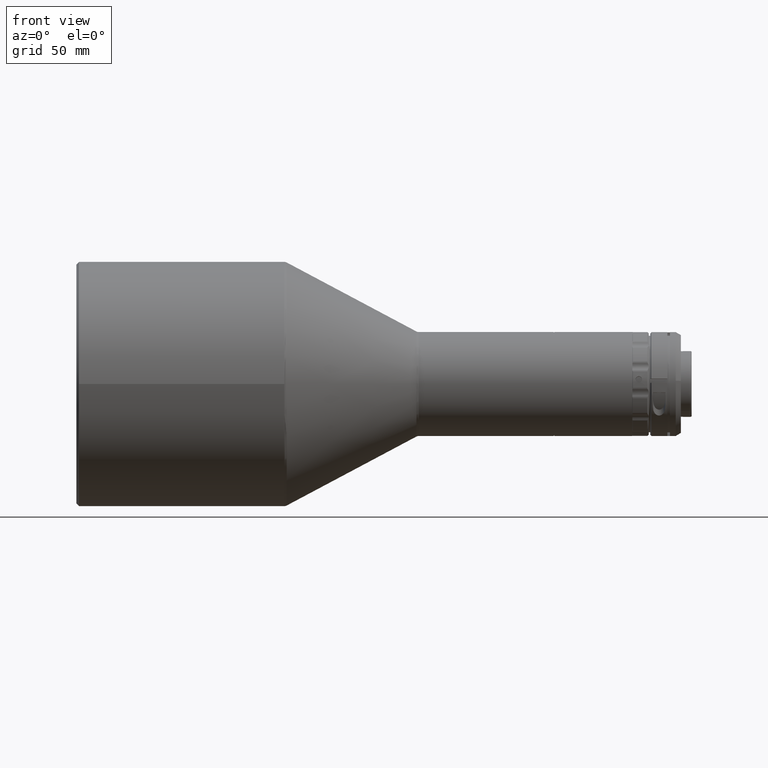
[diagram: clean part render]
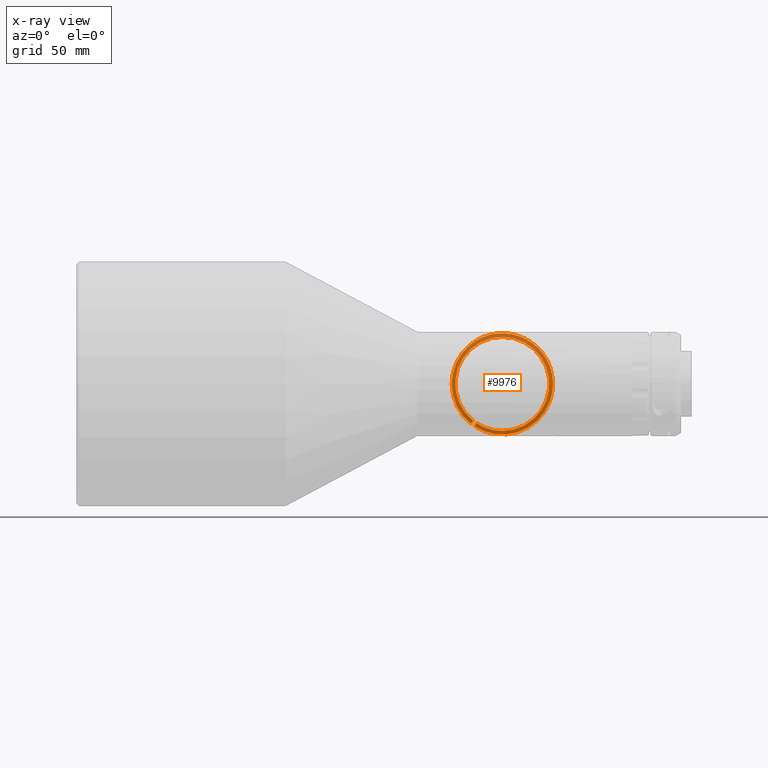
[diagram: x-ray — body ghosted, one internal face saturated and labeled with its STEP entity id]
A machine part, front view, then the same camera in x-ray: the body is ghosted and one INTERNAL B-rep face — a face not visible from any outside direction — is saturated and labeled: STEP entity #9976.
In plain terms, the highlighted planar face has unit normal (0, 1, 0).
Its self-contained STEP definition (entity closure, byte-faithful):
#70 = DIRECTION ( 'NONE',  ( -0.5864805045990307800, 0.0000000000000000000, -0.8099633434454093200 ) ) ;
#101 = VERTEX_POINT ( 'NONE', #3163 ) ;
#583 = CIRCLE ( 'NONE', #11445, 19.50000000000000700 ) ;
#651 = DIRECTION ( 'NONE',  ( -0.5864805045990308900, 0.0000000000000000000, -0.8099633434454093200 ) ) ;
#749 = CARTESIAN_POINT ( 'NONE',  ( 151.6138423446918800, 56.94999999999999600, 15.13454680245852800 ) ) ;
#1133 = DIRECTION ( 'NONE',  ( 0.0000000000000000000, 1.000000000000000000, 0.0000000000000000000 ) ) ;
#1213 = DIRECTION ( 'NONE',  ( 0.0000000000000000000, 1.000000000000000000, 0.0000000000000000000 ) ) ;
#1226 = CARTESIAN_POINT ( 'NONE',  ( 163.9100000000000000, 56.94999999999999600, 0.0000000000000000000 ) ) ;
#1263 = CARTESIAN_POINT ( 'NONE',  ( 163.9100000000000000, 56.94999999999999600, 18.08679845993491100 ) ) ;
#1305 = EDGE_CURVE ( 'NONE', #1441, #13076, #12113, .T. ) ;
#1423 = DIRECTION ( 'NONE',  ( 0.0000000000000000000, 1.000000000000000000, 0.0000000000000000000 ) ) ;
#1441 = VERTEX_POINT ( 'NONE', #10881 ) ;
#1790 = FACE_OUTER_BOUND ( 'NONE', #2478, .T. ) ;
#1821 = CARTESIAN_POINT ( 'NONE',  ( 163.9100000000000000, 56.94999999999999600, 0.0000000000000000000 ) ) ;
#2005 = AXIS2_PLACEMENT_3D ( 'NONE', #6050, #9369, #5061 ) ;
#2007 = CIRCLE ( 'NONE', #7000, 18.08679845993491100 ) ;
#2139 = CIRCLE ( 'NONE', #2005, 19.50000000000000400 ) ;
#2462 = ORIENTED_EDGE ( 'NONE', *, *, #5412, .T. ) ;
#2478 = EDGE_LOOP ( 'NONE', ( #8864, #13947, #13718, #2462, #14333, #9048, #4776, #7026, #4804, #13105, #4122, #3037, #8165 ) ) ;
#2488 = CARTESIAN_POINT ( 'NONE',  ( 175.3463698429205800, 56.94999999999999600, 15.79428519483985100 ) ) ;
#2854 = VERTEX_POINT ( 'NONE', #4536 ) ;
#2934 = DIRECTION ( 'NONE',  ( 0.0000000000000000000, 1.000000000000000000, 0.0000000000000000000 ) ) ;
#2974 = DIRECTION ( 'NONE',  ( 0.0000000000000000000, 1.000000000000000000, 0.0000000000000000000 ) ) ;
#3037 = ORIENTED_EDGE ( 'NONE', *, *, #10727, .F. ) ;
#3163 = CARTESIAN_POINT ( 'NONE',  ( 153.1312291761945200, 56.94999999899128100, -16.25017229104170400 ) ) ;
#3244 = VERTEX_POINT ( 'NONE', #1263 ) ;
#3278 = VERTEX_POINT ( 'NONE', #2488 ) ;
#3539 = LINE ( 'NONE', #12856, #7544 ) ;
#3609 = CARTESIAN_POINT ( 'NONE',  ( 163.9100000000000000, 56.94999999999999600, 0.0000000000000000000 ) ) ;
#3874 = CARTESIAN_POINT ( 'NONE',  ( 163.9100000000000000, 56.94999999999999600, 0.0000000000000000000 ) ) ;
#3884 = DIRECTION ( 'NONE',  ( 0.0000000000000000000, 1.000000000000000000, 0.0000000000000000000 ) ) ;
#4084 = AXIS2_PLACEMENT_3D ( 'NONE', #4515, #1213, #11150 ) ;
#4122 = ORIENTED_EDGE ( 'NONE', *, *, #1305, .F. ) ;
#4515 = CARTESIAN_POINT ( 'NONE',  ( 163.9100000000000000, 56.94999999999999600, 0.0000000000000000000 ) ) ;
#4536 = CARTESIAN_POINT ( 'NONE',  ( 183.3602812413177500, 56.95000000000435800, 1.391603260205095200 ) ) ;
#4589 = CARTESIAN_POINT ( 'NONE',  ( 163.9100000000000000, 56.94999999999999600, 0.0000000000000000000 ) ) ;
#4776 = ORIENTED_EDGE ( 'NONE', *, *, #9593, .F. ) ;
#4804 = ORIENTED_EDGE ( 'NONE', *, *, #5576, .F. ) ;
#5061 = DIRECTION ( 'NONE',  ( -0.5864805045990308900, 0.0000000000000000000, -0.8099633434454093200 ) ) ;
#5127 = DIRECTION ( 'NONE',  ( -0.5864805045990307800, 0.0000000000000000000, -0.8099633434454093200 ) ) ;
#5412 = EDGE_CURVE ( 'NONE', #11306, #6008, #9221, .T. ) ;
#5425 = CIRCLE ( 'NONE', #6544, 19.50000000000000400 ) ;
#5576 = EDGE_CURVE ( 'NONE', #3278, #6467, #11126, .T. ) ;
#5792 = CARTESIAN_POINT ( 'NONE',  ( 152.6648560171681500, 56.94999999999999600, -14.16612209942031300 ) ) ;
#5830 = AXIS2_PLACEMENT_3D ( 'NONE', #1226, #12364, #70 ) ;
#6008 = VERTEX_POINT ( 'NONE', #7422 ) ;
#6050 = CARTESIAN_POINT ( 'NONE',  ( 163.9100000000000000, 56.94999999999999600, 0.0000000000000000000 ) ) ;
#6231 = DIRECTION ( 'NONE',  ( -0.5864805045990308900, 0.0000000000000000000, -0.8099633434454093200 ) ) ;
#6467 = VERTEX_POINT ( 'NONE', #13028 ) ;
#6544 = AXIS2_PLACEMENT_3D ( 'NONE', #4589, #1423, #11315 ) ;
#6668 = AXIS2_PLACEMENT_3D ( 'NONE', #1821, #2934, #9545 ) ;
#6706 = AXIS2_PLACEMENT_3D ( 'NONE', #8448, #10781, #6231 ) ;
#6764 = PLANE ( 'NONE',  #12374 ) ;
#6781 = VERTEX_POINT ( 'NONE', #749 ) ;
#6827 = EDGE_CURVE ( 'NONE', #7640, #6781, #8686, .T. ) ;
#6832 = CIRCLE ( 'NONE', #10729, 18.08679845993491100 ) ;
#7000 = AXIS2_PLACEMENT_3D ( 'NONE', #3874, #9381, #8235 ) ;
#7026 = ORIENTED_EDGE ( 'NONE', *, *, #14053, .F. ) ;
#7185 = DIRECTION ( 'NONE',  ( 0.0000000000000000000, 1.000000000000000000, 0.0000000000000000000 ) ) ;
#7330 = CARTESIAN_POINT ( 'NONE',  ( 182.1260582996450800, 56.94999999999999600, -6.958823178090601600 ) ) ;
#7422 = CARTESIAN_POINT ( 'NONE',  ( 153.9607973516124000, 56.94999999949563800, -15.10449089481736200 ) ) ;
#7436 = CARTESIAN_POINT ( 'NONE',  ( 163.9100000000000000, 56.94999999999999600, 0.0000000000000000000 ) ) ;
#7544 = VECTOR ( 'NONE', #13873, 1000.000000000000200 ) ;
#7640 = VERTEX_POINT ( 'NONE', #12739 ) ;
#7793 = AXIS2_PLACEMENT_3D ( 'NONE', #7436, #2974, #12904 ) ;
#7872 = VECTOR ( 'NONE', #10928, 1000.000000000000200 ) ;
#8165 = ORIENTED_EDGE ( 'NONE', *, *, #6827, .F. ) ;
#8235 = DIRECTION ( 'NONE',  ( 0.0000000000000000000, 0.0000000000000000000, 1.000000000000000000 ) ) ;
#8448 = CARTESIAN_POINT ( 'NONE',  ( 163.9100000000000000, 56.94999999999999600, 0.0000000000000000000 ) ) ;
#8686 = CIRCLE ( 'NONE', #6706, 19.50000000000000400 ) ;
#8864 = ORIENTED_EDGE ( 'NONE', *, *, #11748, .F. ) ;
#8875 = DIRECTION ( 'NONE',  ( -0.5864805045990305600, 0.0000000000000000000, -0.8099633434454094300 ) ) ;
#8945 = EDGE_CURVE ( 'NONE', #12321, #3244, #2007, .T. ) ;
#8959 = EDGE_CURVE ( 'NONE', #12578, #101, #583, .T. ) ;
#9048 = ORIENTED_EDGE ( 'NONE', *, *, #8959, .F. ) ;
#9221 = CIRCLE ( 'NONE', #7793, 18.08679845993491100 ) ;
#9369 = DIRECTION ( 'NONE',  ( 0.0000000000000000000, 1.000000000000000000, 0.0000000000000000000 ) ) ;
#9381 = DIRECTION ( 'NONE',  ( 0.0000000000000000000, 1.000000000000000000, 0.0000000000000000000 ) ) ;
#9545 = DIRECTION ( 'NONE',  ( -0.5864805045990308900, 0.0000000000000000000, -0.8099633434454093200 ) ) ;
#9593 = EDGE_CURVE ( 'NONE', #2854, #12578, #5425, .T. ) ;
#9623 = CARTESIAN_POINT ( 'NONE',  ( 167.5999176894796400, 56.94999999999999600, 19.14770240642112900 ) ) ;
#9798 = EDGE_CURVE ( 'NONE', #101, #6008, #13925, .T. ) ;
#9976 = ADVANCED_FACE ( 'NONE', ( #1790 ), #6764, .F. ) ;
#9997 = CARTESIAN_POINT ( 'NONE',  ( 191.4673651272198400, 56.94999999999999600, 4.410130557975224800 ) ) ;
#10727 = EDGE_CURVE ( 'NONE', #6781, #1441, #2139, .T. ) ;
#10729 = AXIS2_PLACEMENT_3D ( 'NONE', #12602, #3884, #13679 ) ;
#10781 = DIRECTION ( 'NONE',  ( 0.0000000000000000000, 1.000000000000000000, 0.0000000000000000000 ) ) ;
#10881 = CARTESIAN_POINT ( 'NONE',  ( 159.1620324284413900, 56.94999999999999600, 18.91313839476219300 ) ) ;
#10928 = DIRECTION ( 'NONE',  ( 0.5864805045990305600, 0.0000000000000000000, 0.8099633434454095400 ) ) ;
#11126 = CIRCLE ( 'NONE', #4084, 19.50000000000000700 ) ;
#11150 = DIRECTION ( 'NONE',  ( -0.5864805045990307800, 0.0000000000000000000, -0.8099633434454093200 ) ) ;
#11306 = VERTEX_POINT ( 'NONE', #12823 ) ;
#11315 = DIRECTION ( 'NONE',  ( -0.5864805045990308900, 0.0000000000000000000, -0.8099633434454093200 ) ) ;
#11445 = AXIS2_PLACEMENT_3D ( 'NONE', #13806, #7185, #5127 ) ;
#11748 = EDGE_CURVE ( 'NONE', #12321, #7640, #3539, .T. ) ;
#12113 = CIRCLE ( 'NONE', #6668, 19.50000000000000400 ) ;
#12321 = VERTEX_POINT ( 'NONE', #5792 ) ;
#12364 = DIRECTION ( 'NONE',  ( 0.0000000000000000000, 1.000000000000000000, 0.0000000000000000000 ) ) ;
#12373 = EDGE_CURVE ( 'NONE', #3244, #11306, #6832, .T. ) ;
#12374 = AXIS2_PLACEMENT_3D ( 'NONE', #9997, #1133, #8875 ) ;
#12578 = VERTEX_POINT ( 'NONE', #7330 ) ;
#12602 = CARTESIAN_POINT ( 'NONE',  ( 163.9100000000000000, 56.94999999999999600, 0.0000000000000000000 ) ) ;
#12739 = CARTESIAN_POINT ( 'NONE',  ( 151.8352878422451500, 56.94999999899846400, -15.31180349496123800 ) ) ;
#12813 = DIRECTION ( 'NONE',  ( 0.0000000000000000000, 1.000000000000000000, 0.0000000000000000000 ) ) ;
#12823 = CARTESIAN_POINT ( 'NONE',  ( 163.9100000000000000, 56.94999999999999600, -18.08679845993491100 ) ) ;
#12856 = CARTESIAN_POINT ( 'NONE',  ( 163.2668435150043000, 56.94999999999999600, 0.4758330441436775500 ) ) ;
#12904 = DIRECTION ( 'NONE',  ( 0.0000000000000000000, 0.0000000000000000000, 1.000000000000000000 ) ) ;
#13024 = CIRCLE ( 'NONE', #5830, 19.50000000000000700 ) ;
#13028 = CARTESIAN_POINT ( 'NONE',  ( 180.9498243986047000, 56.94999999999999600, 9.481264919024008400 ) ) ;
#13076 = VERTEX_POINT ( 'NONE', #9623 ) ;
#13105 = ORIENTED_EDGE ( 'NONE', *, *, #13677, .F. ) ;
#13623 = AXIS2_PLACEMENT_3D ( 'NONE', #3609, #12813, #651 ) ;
#13677 = EDGE_CURVE ( 'NONE', #13076, #3278, #14257, .T. ) ;
#13679 = DIRECTION ( 'NONE',  ( 0.0000000000000000000, 0.0000000000000000000, 1.000000000000000000 ) ) ;
#13718 = ORIENTED_EDGE ( 'NONE', *, *, #12373, .T. ) ;
#13806 = CARTESIAN_POINT ( 'NONE',  ( 163.9100000000000000, 56.94999999999999600, 0.0000000000000000000 ) ) ;
#13873 = DIRECTION ( 'NONE',  ( -0.5864805045990305600, 0.0000000000000000000, -0.8099633434454095400 ) ) ;
#13925 = LINE ( 'NONE', #14283, #7872 ) ;
#13947 = ORIENTED_EDGE ( 'NONE', *, *, #8945, .T. ) ;
#14053 = EDGE_CURVE ( 'NONE', #6467, #2854, #13024, .T. ) ;
#14257 = CIRCLE ( 'NONE', #13623, 19.50000000000000400 ) ;
#14283 = CARTESIAN_POINT ( 'NONE',  ( 164.5627848333819500, 56.94999999999999600, -0.4625357406704564400 ) ) ;
#14333 = ORIENTED_EDGE ( 'NONE', *, *, #9798, .F. ) ;